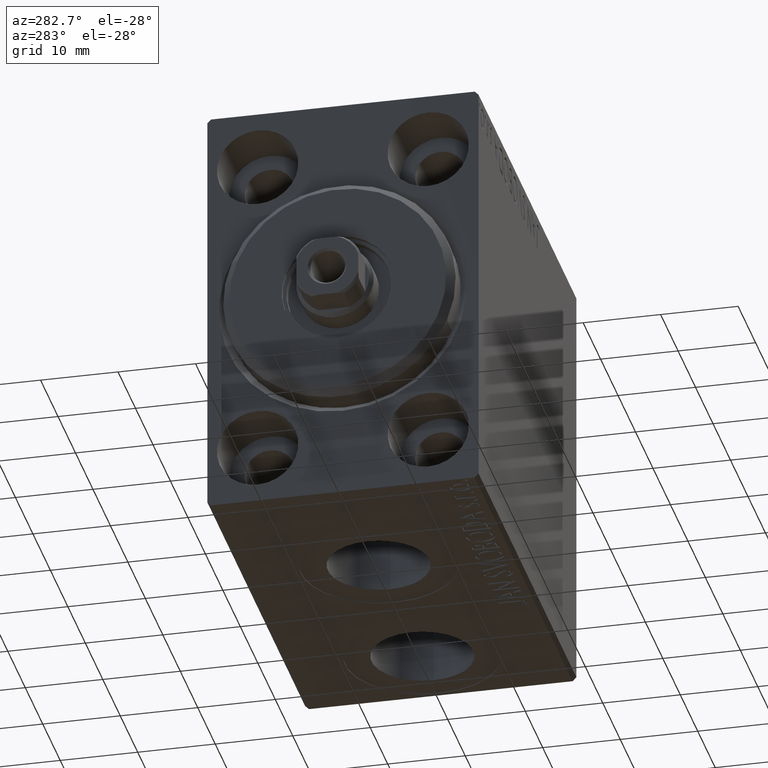
[diagram: clean part render]
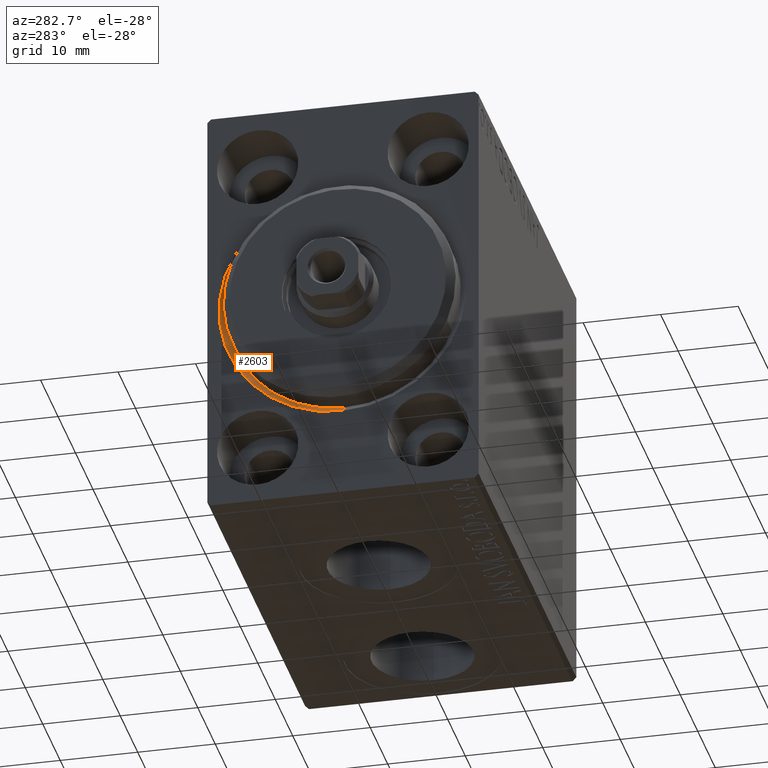
[diagram: same view with one face highlighted and labeled with its STEP entity id]
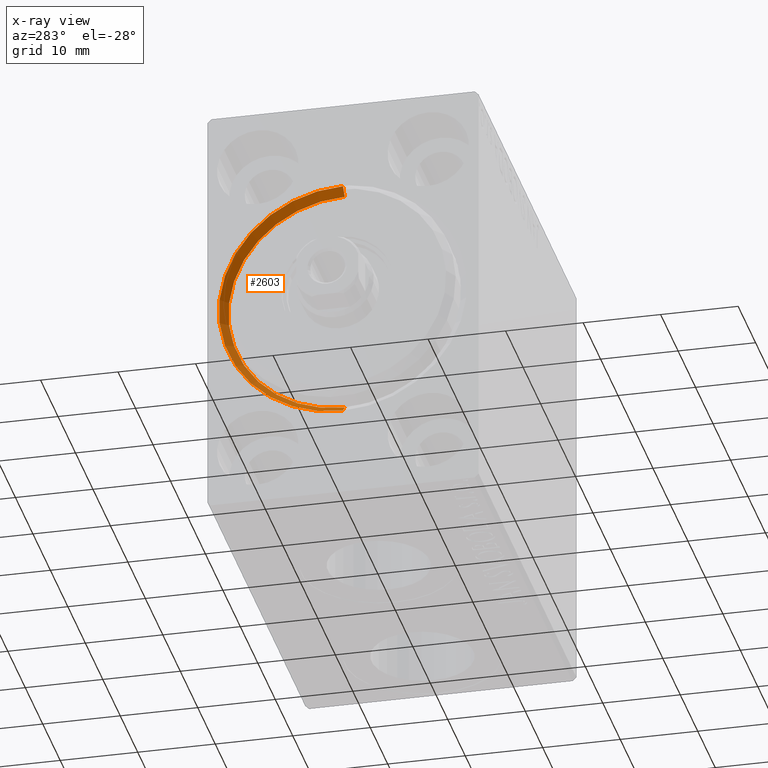
[diagram: x-ray of the same camera — body ghosted, the highlighted face saturated]
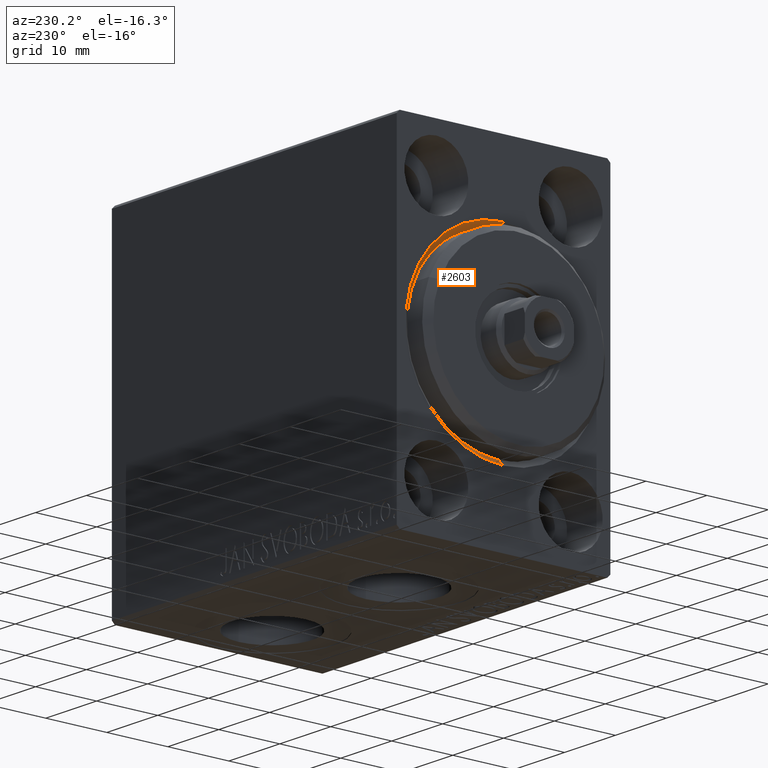
[diagram: same view with one face highlighted and labeled with its STEP entity id]
A machine part, auxiliary view. The second image highlights one B-rep face of the part: STEP entity #2603.
The next image is the same camera in x-ray: the body ghosted, the highlighted face saturated — about 0% of this face is hidden behind the body in this view.
A second angle (auxiliary view) of the same face is appended — the face is thin or edge-on in the first view.
In plain terms, the highlighted conical surface has half-angle 45 deg.
Its self-contained STEP definition (entity closure, byte-faithful):
#1339 = ORIENTED_EDGE ( 'NONE', *, *, #42899, .F. ) ;
#1425 = CONICAL_SURFACE ( 'NONE', #27740, 15.00000000000000000, 0.7853981633974491672 ) ;
#1599 = CARTESIAN_POINT ( 'NONE',  ( 1.000000000000013101, 0.000000000000000000, 0.000000000000000000 ) ) ;
#2603 = ADVANCED_FACE ( 'NONE', ( #27434 ), #1425, .F. ) ;
#2854 = CARTESIAN_POINT ( 'NONE',  ( 0.000000000000000000, 0.000000000000000000, 16.00000000000001421 ) ) ;
#3226 = CIRCLE ( 'NONE', #40922, 15.00000000000000000 ) ;
#3392 = CARTESIAN_POINT ( 'NONE',  ( 1.000000000000013101, 0.000000000000000000, 0.000000000000000000 ) ) ;
#5217 = VERTEX_POINT ( 'NONE', #6215 ) ;
#6215 = CARTESIAN_POINT ( 'NONE',  ( 1.000000000000013101, 0.000000000000000000, 15.00000000000000000 ) ) ;
#6743 = DIRECTION ( 'NONE',  ( 0.000000000000000000, 0.000000000000000000, 1.000000000000000000 ) ) ;
#7857 = VERTEX_POINT ( 'NONE', #40073 ) ;
#8801 = AXIS2_PLACEMENT_3D ( 'NONE', #33979, #27279, #10138 ) ;
#10138 = DIRECTION ( 'NONE',  ( 0.000000000000000000, 0.000000000000000000, -1.000000000000000000 ) ) ;
#10220 = EDGE_CURVE ( 'NONE', #7857, #16424, #25444, .T. ) ;
#10795 = EDGE_LOOP ( 'NONE', ( #40421, #1339, #35206, #36326 ) ) ;
#11286 = LINE ( 'NONE', #34694, #42993 ) ;
#16424 = VERTEX_POINT ( 'NONE', #41718 ) ;
#18778 = VERTEX_POINT ( 'NONE', #2854 ) ;
#25444 = LINE ( 'NONE', #39013, #42036 ) ;
#27279 = DIRECTION ( 'NONE',  ( 1.000000000000000000, 0.000000000000000000, 0.000000000000000000 ) ) ;
#27434 = FACE_OUTER_BOUND ( 'NONE', #10795, .T. ) ;
#27740 = AXIS2_PLACEMENT_3D ( 'NONE', #3392, #37244, #6743 ) ;
#31566 = DIRECTION ( 'NONE',  ( -0.7071067811865469066, 0.000000000000000000, 0.7071067811865481278 ) ) ;
#31674 = DIRECTION ( 'NONE',  ( 0.000000000000000000, 0.000000000000000000, -1.000000000000000000 ) ) ;
#33979 = CARTESIAN_POINT ( 'NONE',  ( 0.000000000000000000, 0.000000000000000000, 0.000000000000000000 ) ) ;
#34055 = EDGE_CURVE ( 'NONE', #16424, #18778, #43633, .T. ) ;
#34694 = CARTESIAN_POINT ( 'NONE',  ( 1.000000000000013101, 0.000000000000000000, 15.00000000000000000 ) ) ;
#34786 = DIRECTION ( 'NONE',  ( -1.000000000000000000, 0.000000000000000000, 0.000000000000000000 ) ) ;
#35206 = ORIENTED_EDGE ( 'NONE', *, *, #39246, .T. ) ;
#36326 = ORIENTED_EDGE ( 'NONE', *, *, #34055, .F. ) ;
#37244 = DIRECTION ( 'NONE',  ( -1.000000000000000000, 0.000000000000000000, 0.000000000000000000 ) ) ;
#39013 = CARTESIAN_POINT ( 'NONE',  ( 1.000000000000013101, 1.836970198721029589E-15, -15.00000000000000000 ) ) ;
#39246 = EDGE_CURVE ( 'NONE', #5217, #18778, #11286, .T. ) ;
#40073 = CARTESIAN_POINT ( 'NONE',  ( 1.000000000000013101, 1.836970198721029589E-15, -15.00000000000000000 ) ) ;
#40421 = ORIENTED_EDGE ( 'NONE', *, *, #10220, .F. ) ;
#40922 = AXIS2_PLACEMENT_3D ( 'NONE', #1599, #34786, #31674 ) ;
#41718 = CARTESIAN_POINT ( 'NONE',  ( 0.000000000000000000, 1.959434878635766709E-15, -16.00000000000001421 ) ) ;
#42036 = VECTOR ( 'NONE', #42799, 1000.000000000000114 ) ;
#42799 = DIRECTION ( 'NONE',  ( -0.7071067811865469066, 8.659560562354940254E-17, -0.7071067811865481278 ) ) ;
#42899 = EDGE_CURVE ( 'NONE', #5217, #7857, #3226, .T. ) ;
#42993 = VECTOR ( 'NONE', #31566, 1000.000000000000114 ) ;
#43633 = CIRCLE ( 'NONE', #8801, 16.00000000000001421 ) ;